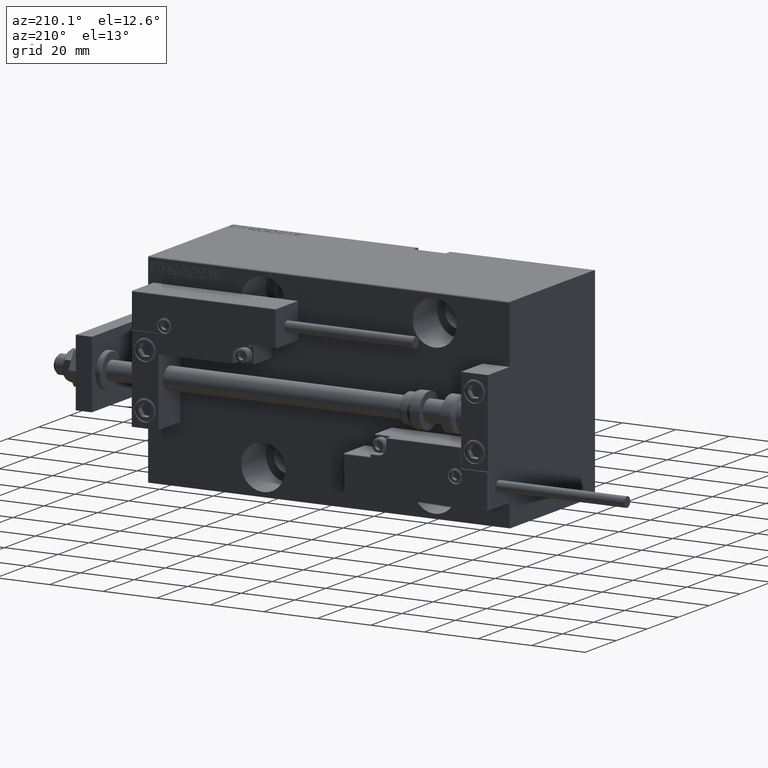
[diagram: clean part render]
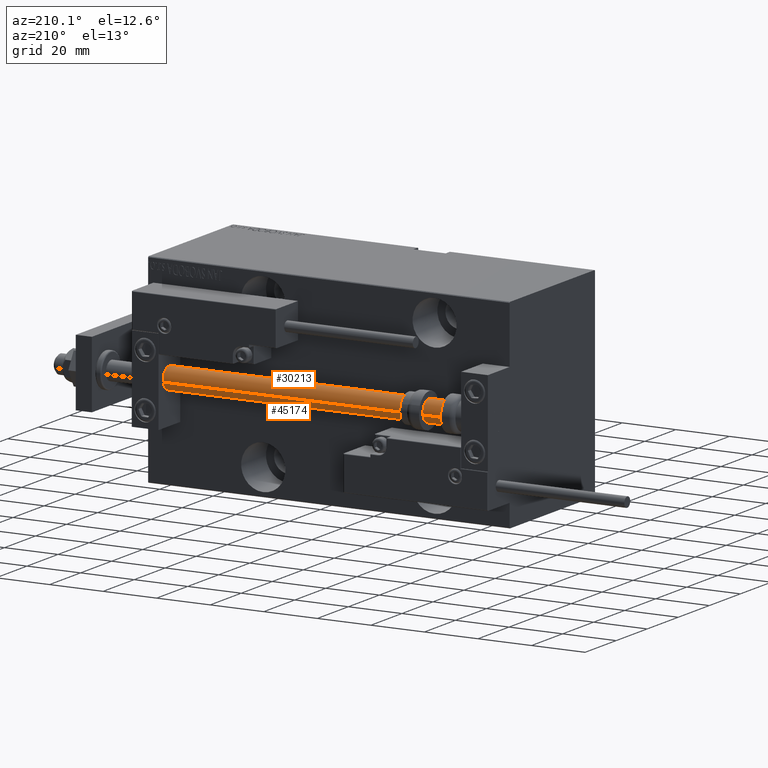
[diagram: same view with one multi-face feature highlighted, each face labeled with its STEP entity id]
A machine part, auxiliary view. The highlighted faces form ONE feature: a constant-radius fillet chain: 2 tangent blend faces with common blend radius 4 mm. The faces share edges in the B-rep.
Their STEP definitions:
[1] entity #45174 (Cylinder):
#196 = CYLINDRICAL_SURFACE ( 'NONE', #18277, 4.000000000000000000 ) ;
#2483 = AXIS2_PLACEMENT_3D ( 'NONE', #48714, #33610, #22298 ) ;
#3030 = CARTESIAN_POINT ( 'NONE',  ( 4.000000000000000000, 4.898587196589412829E-16, 135.0000000000000000 ) ) ;
#4492 = AXIS2_PLACEMENT_3D ( 'NONE', #11999, #12251, #46734 ) ;
#4853 = VERTEX_POINT ( 'NONE', #10677 ) ;
#8348 = LINE ( 'NONE', #11873, #41203 ) ;
#8403 = EDGE_CURVE ( 'NONE', #37139, #28735, #41892, .T. ) ;
#10677 = CARTESIAN_POINT ( 'NONE',  ( -4.000000000000000000, 0.000000000000000000, 2.000000000000029310 ) ) ;
#11873 = CARTESIAN_POINT ( 'NONE',  ( -4.000000000000000000, 0.000000000000000000, 135.0000000000000000 ) ) ;
#11999 = CARTESIAN_POINT ( 'NONE',  ( 0.000000000000000000, 0.000000000000000000, 2.000000000000029310 ) ) ;
#12251 = DIRECTION ( 'NONE',  ( -0.000000000000000000, -0.000000000000000000, 1.000000000000000000 ) ) ;
#12384 = EDGE_CURVE ( 'NONE', #28735, #4853, #8348, .T. ) ;
#16749 = EDGE_CURVE ( 'NONE', #43745, #4853, #22201, .T. ) ;
#18277 = AXIS2_PLACEMENT_3D ( 'NONE', #31660, #24865, #43974 ) ;
#19155 = VECTOR ( 'NONE', #28298, 1000.000000000000000 ) ;
#20485 = CARTESIAN_POINT ( 'NONE',  ( 4.000000000000000000, 4.898587196589412829E-16, 135.0000000000000000 ) ) ;
#22201 = CIRCLE ( 'NONE', #4492, 4.000000000000000000 ) ;
#22298 = DIRECTION ( 'NONE',  ( 1.000000000000000000, 0.000000000000000000, 0.000000000000000000 ) ) ;
#24274 = LINE ( 'NONE', #20485, #19155 ) ;
#24865 = DIRECTION ( 'NONE',  ( -0.000000000000000000, -0.000000000000000000, -1.000000000000000000 ) ) ;
#28298 = DIRECTION ( 'NONE',  ( -0.000000000000000000, -0.000000000000000000, -1.000000000000000000 ) ) ;
#28313 = CARTESIAN_POINT ( 'NONE',  ( 4.000000000000000000, 4.898587196589412829E-16, 2.000000000000029310 ) ) ;
#28735 = VERTEX_POINT ( 'NONE', #47218 ) ;
#31660 = CARTESIAN_POINT ( 'NONE',  ( 0.000000000000000000, 0.000000000000000000, 135.0000000000000000 ) ) ;
#32383 = ORIENTED_EDGE ( 'NONE', *, *, #8403, .F. ) ;
#32587 = ORIENTED_EDGE ( 'NONE', *, *, #46935, .T. ) ;
#33610 = DIRECTION ( 'NONE',  ( 0.000000000000000000, 0.000000000000000000, 1.000000000000000000 ) ) ;
#34696 = FACE_OUTER_BOUND ( 'NONE', #38795, .T. ) ;
#37139 = VERTEX_POINT ( 'NONE', #3030 ) ;
#38795 = EDGE_LOOP ( 'NONE', ( #32383, #32587, #43003, #45673 ) ) ;
#41203 = VECTOR ( 'NONE', #45864, 1000.000000000000000 ) ;
#41892 = CIRCLE ( 'NONE', #2483, 4.000000000000000000 ) ;
#43003 = ORIENTED_EDGE ( 'NONE', *, *, #16749, .T. ) ;
#43745 = VERTEX_POINT ( 'NONE', #28313 ) ;
#43974 = DIRECTION ( 'NONE',  ( -1.000000000000000000, 0.000000000000000000, 0.000000000000000000 ) ) ;
#45174 = ADVANCED_FACE ( 'NONE', ( #34696 ), #196, .T. ) ;
#45673 = ORIENTED_EDGE ( 'NONE', *, *, #12384, .F. ) ;
#45864 = DIRECTION ( 'NONE',  ( -0.000000000000000000, -0.000000000000000000, -1.000000000000000000 ) ) ;
#46734 = DIRECTION ( 'NONE',  ( 1.000000000000000000, 0.000000000000000000, 0.000000000000000000 ) ) ;
#46935 = EDGE_CURVE ( 'NONE', #37139, #43745, #24274, .T. ) ;
#47218 = CARTESIAN_POINT ( 'NONE',  ( -4.000000000000000000, 0.000000000000000000, 135.0000000000000000 ) ) ;
#48714 = CARTESIAN_POINT ( 'NONE',  ( 0.000000000000000000, 0.000000000000000000, 135.0000000000000000 ) ) ;
[2] entity #30213 (Cylinder):
#1401 = DIRECTION ( 'NONE',  ( 0.000000000000000000, 0.000000000000000000, 1.000000000000000000 ) ) ;
#1644 = CARTESIAN_POINT ( 'NONE',  ( 0.000000000000000000, 0.000000000000000000, 135.0000000000000000 ) ) ;
#3030 = CARTESIAN_POINT ( 'NONE',  ( 4.000000000000000000, 4.898587196589412829E-16, 135.0000000000000000 ) ) ;
#4783 = AXIS2_PLACEMENT_3D ( 'NONE', #1644, #1401, #16522 ) ;
#4853 = VERTEX_POINT ( 'NONE', #10677 ) ;
#5385 = DIRECTION ( 'NONE',  ( -1.000000000000000000, 0.000000000000000000, 0.000000000000000000 ) ) ;
#7205 = CIRCLE ( 'NONE', #19269, 4.000000000000000000 ) ;
#7863 = DIRECTION ( 'NONE',  ( 1.000000000000000000, 0.000000000000000000, 0.000000000000000000 ) ) ;
#8348 = LINE ( 'NONE', #11873, #41203 ) ;
#10677 = CARTESIAN_POINT ( 'NONE',  ( -4.000000000000000000, 0.000000000000000000, 2.000000000000029310 ) ) ;
#11873 = CARTESIAN_POINT ( 'NONE',  ( -4.000000000000000000, 0.000000000000000000, 135.0000000000000000 ) ) ;
#12384 = EDGE_CURVE ( 'NONE', #28735, #4853, #8348, .T. ) ;
#12688 = FACE_OUTER_BOUND ( 'NONE', #27539, .T. ) ;
#12909 = AXIS2_PLACEMENT_3D ( 'NONE', #28797, #39894, #5385 ) ;
#16522 = DIRECTION ( 'NONE',  ( 1.000000000000000000, 0.000000000000000000, 0.000000000000000000 ) ) ;
#19155 = VECTOR ( 'NONE', #28298, 1000.000000000000000 ) ;
#19245 = ORIENTED_EDGE ( 'NONE', *, *, #28684, .F. ) ;
#19269 = AXIS2_PLACEMENT_3D ( 'NONE', #42596, #33793, #7863 ) ;
#20485 = CARTESIAN_POINT ( 'NONE',  ( 4.000000000000000000, 4.898587196589412829E-16, 135.0000000000000000 ) ) ;
#20506 = ORIENTED_EDGE ( 'NONE', *, *, #29233, .T. ) ;
#24274 = LINE ( 'NONE', #20485, #19155 ) ;
#27539 = EDGE_LOOP ( 'NONE', ( #39422, #19245, #46810, #20506 ) ) ;
#28298 = DIRECTION ( 'NONE',  ( -0.000000000000000000, -0.000000000000000000, -1.000000000000000000 ) ) ;
#28313 = CARTESIAN_POINT ( 'NONE',  ( 4.000000000000000000, 4.898587196589412829E-16, 2.000000000000029310 ) ) ;
#28684 = EDGE_CURVE ( 'NONE', #28735, #37139, #28900, .T. ) ;
#28735 = VERTEX_POINT ( 'NONE', #47218 ) ;
#28797 = CARTESIAN_POINT ( 'NONE',  ( 0.000000000000000000, 0.000000000000000000, 135.0000000000000000 ) ) ;
#28900 = CIRCLE ( 'NONE', #4783, 4.000000000000000000 ) ;
#29233 = EDGE_CURVE ( 'NONE', #4853, #43745, #7205, .T. ) ;
#30213 = ADVANCED_FACE ( 'NONE', ( #12688 ), #32078, .T. ) ;
#32078 = CYLINDRICAL_SURFACE ( 'NONE', #12909, 4.000000000000000000 ) ;
#33793 = DIRECTION ( 'NONE',  ( -0.000000000000000000, -0.000000000000000000, 1.000000000000000000 ) ) ;
#37139 = VERTEX_POINT ( 'NONE', #3030 ) ;
#39422 = ORIENTED_EDGE ( 'NONE', *, *, #46935, .F. ) ;
#39894 = DIRECTION ( 'NONE',  ( -0.000000000000000000, -0.000000000000000000, -1.000000000000000000 ) ) ;
#41203 = VECTOR ( 'NONE', #45864, 1000.000000000000000 ) ;
#42596 = CARTESIAN_POINT ( 'NONE',  ( 0.000000000000000000, 0.000000000000000000, 2.000000000000029310 ) ) ;
#43745 = VERTEX_POINT ( 'NONE', #28313 ) ;
#45864 = DIRECTION ( 'NONE',  ( -0.000000000000000000, -0.000000000000000000, -1.000000000000000000 ) ) ;
#46810 = ORIENTED_EDGE ( 'NONE', *, *, #12384, .T. ) ;
#46935 = EDGE_CURVE ( 'NONE', #37139, #43745, #24274, .T. ) ;
#47218 = CARTESIAN_POINT ( 'NONE',  ( -4.000000000000000000, 0.000000000000000000, 135.0000000000000000 ) ) ;